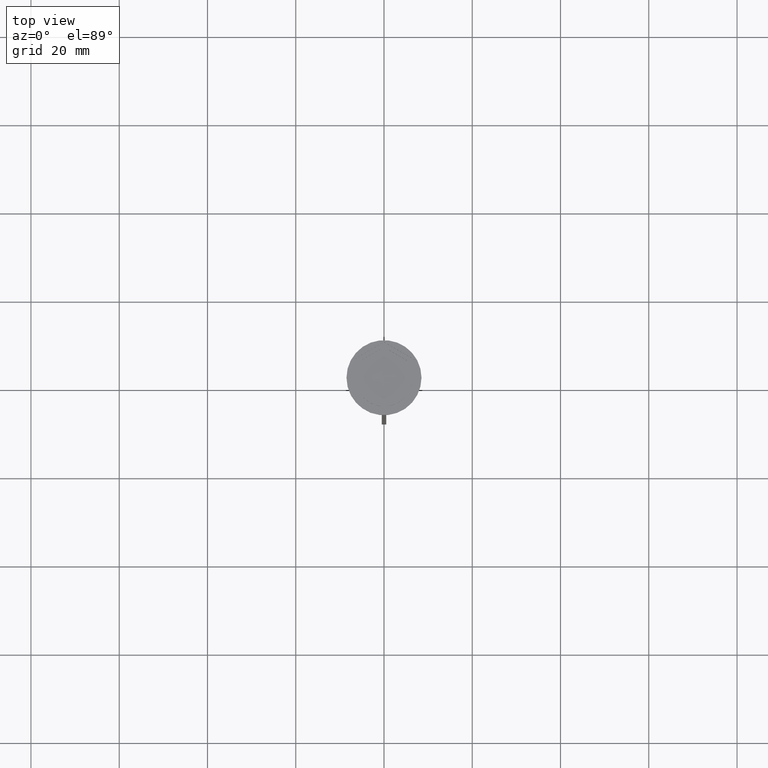
[diagram: clean part render]
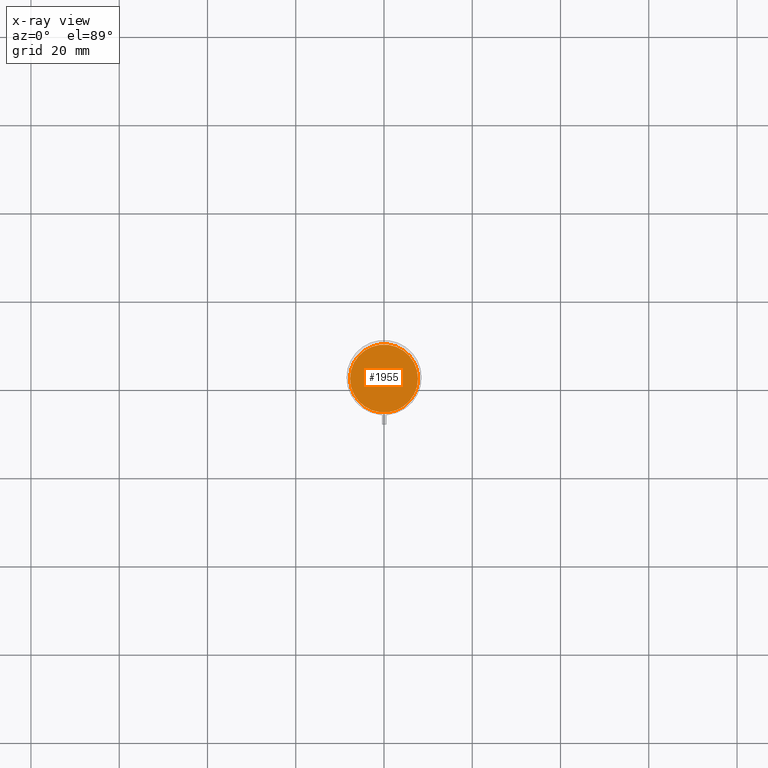
[diagram: x-ray — body ghosted, one internal face saturated and labeled with its STEP entity id]
A machine part, top view, then the same camera in x-ray: the body is ghosted and one INTERNAL B-rep face — a face not visible from any outside direction — is saturated and labeled: STEP entity #1955.
In plain terms, the highlighted planar face has unit normal (0, 0, -1).
Its self-contained STEP definition (entity closure, byte-faithful):
#133 = VERTEX_POINT ( 'NONE', #1785 ) ;
#229 = CARTESIAN_POINT ( 'NONE',  ( -7.700000000000001954, 0.000000000000000000, -12.00000000000000000 ) ) ;
#231 = AXIS2_PLACEMENT_3D ( 'NONE', #1943, #1587, #1159 ) ;
#274 = DIRECTION ( 'NONE',  ( -1.000000000000000000, 0.000000000000000000, 0.000000000000000000 ) ) ;
#281 = AXIS2_PLACEMENT_3D ( 'NONE', #1194, #1250, #274 ) ;
#284 = EDGE_CURVE ( 'NONE', #674, #133, #2337, .T. ) ;
#489 = EDGE_LOOP ( 'NONE', ( #1214, #1205 ) ) ;
#674 = VERTEX_POINT ( 'NONE', #229 ) ;
#679 = AXIS2_PLACEMENT_3D ( 'NONE', #2238, #909, #742 ) ;
#742 = DIRECTION ( 'NONE',  ( -1.000000000000000000, 0.000000000000000000, -0.000000000000000000 ) ) ;
#909 = DIRECTION ( 'NONE',  ( 0.000000000000000000, 0.000000000000000000, -1.000000000000000000 ) ) ;
#929 = PLANE ( 'NONE',  #679 ) ;
#1112 = FACE_OUTER_BOUND ( 'NONE', #489, .T. ) ;
#1159 = DIRECTION ( 'NONE',  ( -1.000000000000000000, 0.000000000000000000, 0.000000000000000000 ) ) ;
#1194 = CARTESIAN_POINT ( 'NONE',  ( 0.000000000000000000, 0.000000000000000000, -12.00000000000000000 ) ) ;
#1205 = ORIENTED_EDGE ( 'NONE', *, *, #2178, .T. ) ;
#1214 = ORIENTED_EDGE ( 'NONE', *, *, #284, .T. ) ;
#1250 = DIRECTION ( 'NONE',  ( -0.000000000000000000, -0.000000000000000000, 1.000000000000000000 ) ) ;
#1383 = CIRCLE ( 'NONE', #281, 7.700000000000001954 ) ;
#1587 = DIRECTION ( 'NONE',  ( -0.000000000000000000, -0.000000000000000000, 1.000000000000000000 ) ) ;
#1785 = CARTESIAN_POINT ( 'NONE',  ( 7.700000000000001954, 9.613477373306725302E-16, -12.00000000000000000 ) ) ;
#1943 = CARTESIAN_POINT ( 'NONE',  ( 0.000000000000000000, 0.000000000000000000, -12.00000000000000000 ) ) ;
#1955 = ADVANCED_FACE ( 'NONE', ( #1112 ), #929, .F. ) ;
#2178 = EDGE_CURVE ( 'NONE', #133, #674, #1383, .T. ) ;
#2238 = CARTESIAN_POINT ( 'NONE',  ( 0.000000000000000000, 0.000000000000000000, -12.00000000000000000 ) ) ;
#2337 = CIRCLE ( 'NONE', #231, 7.700000000000001954 ) ;